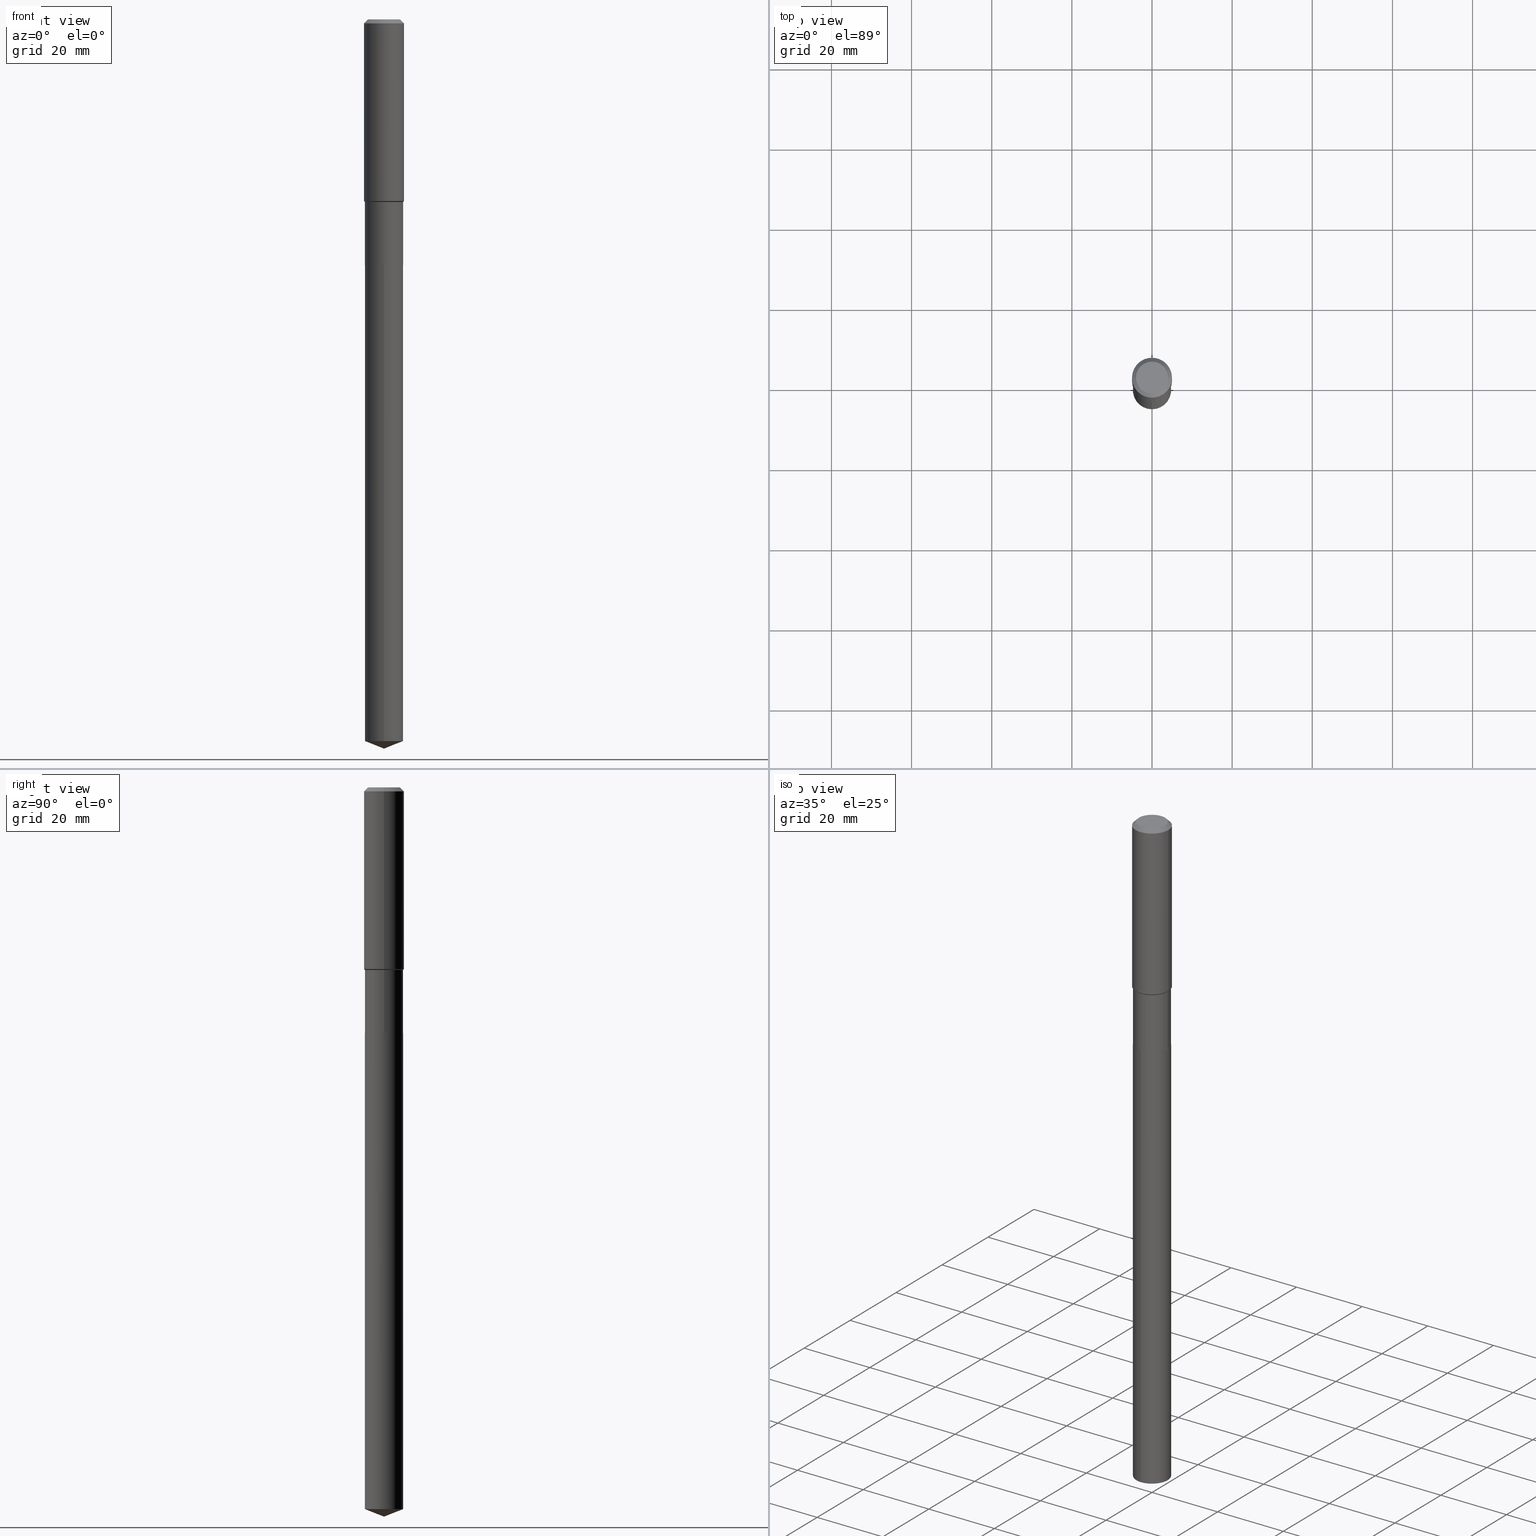
[diagram: canonical four-view strip — front | top / right | iso, engineering-drawing reading convention]
A machine part, canonical four-view strip (front | top / right | iso — engineering-drawing reading convention). The complete STEP part file that produces these views, byte-faithful:
ISO-10303-21;
HEADER;
FILE_DESCRIPTION (( 'STEP AP203' ),
    '1' );
FILE_NAME ('56529.STEP',
    '2024-04-24T18:19:36',
    ( '' ),
    ( '' ),
    'SwSTEP 2.0',
    'SolidWorks 2023',
    '' );
FILE_SCHEMA (( 'CONFIG_CONTROL_DESIGN' ));
ENDSEC;

DATA;
#1 = DIRECTION ( 'NONE',  ( -2.445468806185136597E-29, 3.491481338843145583E-15, 1.000000000000000000 ) ) ;
#2 = AXIS2_PLACEMENT_3D ( 'NONE', #35, #78, #224 ) ;
#3 = FACE_OUTER_BOUND ( 'NONE', #220, .T. ) ;
#4 = AXIS2_PLACEMENT_3D ( 'NONE', #473, #96, #235 ) ;
#5 = DIRECTION ( 'NONE',  ( -2.445468806185136597E-29, 3.491481338843145583E-15, 1.000000000000000000 ) ) ;
#6 = DIRECTION ( 'NONE',  ( -6.982962677686265922E-15, -1.000000000000000000, 2.913971193241880372E-15 ) ) ;
#7 = FACE_OUTER_BOUND ( 'NONE', #351, .T. ) ;
#8 = LINE ( 'NONE', #116, #114 ) ;
#9 = EDGE_CURVE ( 'NONE', #318, #447, #44, .T. ) ;
#10 = APPLICATION_PROTOCOL_DEFINITION ( 'international standard', 'config_control_design', 1994, #239 ) ;
#11 = LOCAL_TIME ( 14, 19, 36.00000000000000000, #93 ) ;
#12 = DIRECTION ( 'NONE',  ( -2.445468806185136597E-29, 3.491481338843145583E-15, 1.000000000000000000 ) ) ;
#13 = EDGE_CURVE ( 'NONE', #127, #438, #23, .T. ) ;
#14 = MANIFOLD_SOLID_BREP ( 'Body-Move/Copy2[2]', #223 ) ;
#15 = DIRECTION ( 'NONE',  ( -2.445468806185136597E-29, 3.491481338843145583E-15, 1.000000000000000000 ) ) ;
#16 = UNCERTAINTY_MEASURE_WITH_UNIT (LENGTH_MEASURE( 1.000000000000000082E-05 ), #287, 'distance_accuracy_value', 'NONE');
#17 = CARTESIAN_POINT ( 'NONE',  ( 1.752193495666872718E-28, -2.501624887807303408E-14, -7.165000000000000036 ) ) ;
#18 = ORGANIZATION ( 'UNSPECIFIED', 'UNSPECIFIED', '' ) ;
#19 = ORIENTED_EDGE ( 'NONE', *, *, #9, .T. ) ;
#20 = DIRECTION ( 'NONE',  ( -2.445489751636567891E-29, 3.491451343764555193E-15, 1.000000000000000000 ) ) ;
#21 = PERSON_AND_ORGANIZATION ( #261, #18 ) ;
#22 = EDGE_CURVE ( 'NONE', #422, #399, #336, .T. ) ;
#23 = CIRCLE ( 'NONE', #54, 0.1968500000000002192 ) ;
#24 = VERTEX_POINT ( 'NONE', #182 ) ;
#25 = DESIGN_CONTEXT ( 'detailed design', #239, 'design' ) ;
#26 = CONICAL_SURFACE ( 'NONE', #86, 0.1869999999999999996, 0.7853981633975507526 ) ;
#27 = PERSON_AND_ORGANIZATION ( #261, #18 ) ;
#28 = ORIENTED_EDGE ( 'NONE', *, *, #269, .T. ) ;
#29 = EDGE_CURVE ( 'NONE', #236, #406, #402, .T. ) ;
#30 = ORIENTED_EDGE ( 'NONE', *, *, #407, .T. ) ;
#31 = ORIENTED_EDGE ( 'NONE', *, *, #80, .F. ) ;
#32 = ORIENTED_EDGE ( 'NONE', *, *, #105, .T. ) ;
#33 = CONICAL_SURFACE ( 'NONE', #487, 0.1874999999999999445, 0.7853981633974482790 ) ;
#34 = VECTOR ( 'NONE', #180, 39.37007874015748143 ) ;
#35 = CARTESIAN_POINT ( 'NONE',  ( 5.898470760518548790E-29, -8.421452989289666115E-15, -2.411999999999999478 ) ) ;
#36 = CARTESIAN_POINT ( 'NONE',  ( -4.713871149261283817E-47, 6.730158695841841775E-33, 1.927594061857935365E-18 ) ) ;
#37 =( NAMED_UNIT ( * ) SI_UNIT ( $, .STERADIAN. ) SOLID_ANGLE_UNIT ( ) );
#38 = CIRCLE ( 'NONE', #280, 0.1574800000000000089 ) ;
#39 = EDGE_LOOP ( 'NONE', ( #283, #30, #357, #332 ) ) ;
#40 = CARTESIAN_POINT ( 'NONE',  ( 0.000000000000000000, 0.000000000000000000, 0.000000000000000000 ) ) ;
#41 = APPROVAL_PERSON_ORGANIZATION ( #156, #374, #102 ) ;
#42 = FACE_OUTER_BOUND ( 'NONE', #360, .T. ) ;
#43 = EDGE_CURVE ( 'NONE', #368, #24, #467, .T. ) ;
#44 = CIRCLE ( 'NONE', #227, 0.1574800000000000089 ) ;
#45 = VECTOR ( 'NONE', #421, 39.37007874015748854 ) ;
#46 = EDGE_CURVE ( 'NONE', #318, #210, #184, .T. ) ;
#47 = EDGE_CURVE ( 'NONE', #406, #399, #453, .T. ) ;
#48 = CC_DESIGN_PERSON_AND_ORGANIZATION_ASSIGNMENT ( #165, #341, ( #414 ) ) ;
#49 = CARTESIAN_POINT ( 'NONE',  ( -0.1574800000000000089, 1.168406772637159618E-15, 3.855188123707939751E-18 ) ) ;
#50 = FACE_OUTER_BOUND ( 'NONE', #398, .T. ) ;
#51 = LOCAL_TIME ( 14, 19, 36.00000000000000000, #84 ) ;
#52 = FACE_OUTER_BOUND ( 'NONE', #365, .T. ) ;
#53 = CARTESIAN_POINT ( 'NONE',  ( -0.1968500000000000250, 1.237136582792286225E-15, -0.03937000000000026589 ) ) ;
#54 = AXIS2_PLACEMENT_3D ( 'NONE', #113, #370, #256 ) ;
#55 = FACE_OUTER_BOUND ( 'NONE', #178, .T. ) ;
#56 = CARTESIAN_POINT ( 'NONE',  ( -1.309305502066116041E-15, -0.1875000000000084377, -2.412499999999998757 ) ) ;
#57 = SECURITY_CLASSIFICATION_LEVEL ( 'unclassified' ) ;
#58 = ADVANCED_FACE ( 'NONE', ( #449 ), #410, .T. ) ;
#59 = LOCAL_TIME ( 14, 19, 36.00000000000000000, #66 ) ;
#60 = DIRECTION ( 'NONE',  ( 2.445489751636567331E-29, -3.491451343764555193E-15, -1.000000000000000000 ) ) ;
#61 = DIRECTION ( 'NONE',  ( -2.445468806185136597E-29, 3.491481338843145583E-15, 1.000000000000000000 ) ) ;
#62 = AXIS2_PLACEMENT_3D ( 'NONE', #270, #61, #471 ) ;
#63 = CIRCLE ( 'NONE', #317, 0.1968500000000000250 ) ;
#64 = PERSON_AND_ORGANIZATION_ROLE ( 'creator' ) ;
#65 = CARTESIAN_POINT ( 'NONE',  ( 5.899693494921640470E-29, -8.423198729959086830E-15, -2.412499999999999645 ) ) ;
#66 = COORDINATED_UNIVERSAL_TIME_OFFSET ( 5, 0, .BEHIND. ) ;
#67 = ORIENTED_EDGE ( 'NONE', *, *, #219, .F. ) ;
#68 = CARTESIAN_POINT ( 'NONE',  ( -9.427742298522567634E-47, 1.346031739168368355E-32, 3.855188123715870730E-18 ) ) ;
#69 = VECTOR ( 'NONE', #237, 39.37007874015748143 ) ;
#70 = ORIENTED_EDGE ( 'NONE', *, *, #151, .F. ) ;
#71 = ORIENTED_EDGE ( 'NONE', *, *, #43, .T. ) ;
#72 = DIRECTION ( 'NONE',  ( 1.000000000000000000, -6.982962677686265133E-15, 0.000000000000000000 ) ) ;
#73 =( LENGTH_UNIT ( ) NAMED_UNIT ( * ) SI_UNIT ( $, .METRE. ) );
#74 = EDGE_CURVE ( 'NONE', #438, #361, #8, .T. ) ;
#75 = DIRECTION ( 'NONE',  ( -2.445468806185136597E-29, 3.491481338843145583E-15, 1.000000000000000000 ) ) ;
#76 = AXIS2_PLACEMENT_3D ( 'NONE', #290, #179, #376 ) ;
#77 = CIRCLE ( 'NONE', #188, 0.1875000000000000278 ) ;
#78 = DIRECTION ( 'NONE',  ( -2.445468806185136597E-29, 3.491481338843145583E-15, 1.000000000000000000 ) ) ;
#79 = CARTESIAN_POINT ( 'NONE',  ( 5.899693494921640470E-29, -8.423198729959086830E-15, -2.412499999999999645 ) ) ;
#80 = EDGE_CURVE ( 'NONE', #291, #368, #99, .T. ) ;
#81 = APPROVAL_STATUS ( 'not_yet_approved' ) ;
#82 = LINE ( 'NONE', #190, #352 ) ;
#83 = EDGE_CURVE ( 'NONE', #216, #127, #82, .T. ) ;
#84 = COORDINATED_UNIVERSAL_TIME_OFFSET ( 5, 0, .BEHIND. ) ;
#85 = CARTESIAN_POINT ( 'NONE',  ( 0.1875000000000000278, -9.730758491355841123E-15, -2.411999999999999478 ) ) ;
#86 = AXIS2_PLACEMENT_3D ( 'NONE', #198, #272, #264 ) ;
#87 = CARTESIAN_POINT ( 'NONE',  ( 5.898470760518548790E-29, -8.421452989289666115E-15, -2.411999999999999478 ) ) ;
#88 = CARTESIAN_POINT ( 'NONE',  ( 0.000000000000000000, 0.000000000000000000, 0.000000000000000000 ) ) ;
#89 = EDGE_CURVE ( 'NONE', #291, #24, #302, .T. ) ;
#90 = CC_DESIGN_APPROVAL ( #267, ( #350 ) ) ;
#91 = CARTESIAN_POINT ( 'NONE',  ( 0.1968500000000001082, -1.374596203102542397E-15, 9.598753983154305062E-30 ) ) ;
#92 = ADVANCED_FACE ( 'NONE', ( #169 ), #33, .T. ) ;
#93 = COORDINATED_UNIVERSAL_TIME_OFFSET ( 5, 0, .BEHIND. ) ;
#94 = CARTESIAN_POINT ( 'NONE',  ( 4.386437397654279602E-29, -6.262670077482950394E-15, -1.793700000000000072 ) ) ;
#95 = DIRECTION ( 'NONE',  ( 0.7071067811865474617, -2.468850131082256666E-15, 0.7071067811865474617 ) ) ;
#96 = DIRECTION ( 'NONE',  ( -2.445468806185136597E-29, 3.491481338843145583E-15, 1.000000000000000000 ) ) ;
#97 = CYLINDRICAL_SURFACE ( 'NONE', #257, 0.1875000000000000278 ) ;
#98 = DIMENSIONAL_EXPONENTS ( 1.000000000000000000, 0.000000000000000000, 0.000000000000000000, 0.000000000000000000, 0.000000000000000000, 0.000000000000000000, 0.000000000000000000 ) ;
#99 = LINE ( 'NONE', #260, #448 ) ;
#100 = VERTEX_POINT ( 'NONE', #263 ) ;
#101 = EDGE_CURVE ( 'NONE', #24, #368, #207, .T. ) ;
#102 = APPROVAL_ROLE ( '' ) ;
#103 = ADVANCED_BREP_SHAPE_REPRESENTATION ( '56529', ( #322, #14, #221 ), #378 ) ;
#104 = EDGE_CURVE ( 'NONE', #438, #127, #301, .T. ) ;
#105 = EDGE_CURVE ( 'NONE', #127, #210, #238, .T. ) ;
#106 = ORIENTED_EDGE ( 'NONE', *, *, #430, .F. ) ;
#107 = CARTESIAN_POINT ( 'NONE',  ( 1.734126403372843801E-28, -2.475844888006100579E-14, -7.091141785822198784 ) ) ;
#108 = AXIS2_PLACEMENT_3D ( 'NONE', #344, #401, #405 ) ;
#109 = AXIS2_PLACEMENT_3D ( 'NONE', #167, #203, #396 ) ;
#110 = EDGE_LOOP ( 'NONE', ( #372, #19 ) ) ;
#111 = DIRECTION ( 'NONE',  ( -2.445468806185136597E-29, 3.491481338843145583E-15, 1.000000000000000000 ) ) ;
#112 = ORIENTED_EDGE ( 'NONE', *, *, #74, .T. ) ;
#113 = CARTESIAN_POINT ( 'NONE',  ( 4.363572264316447914E-29, -6.230024726964765516E-15, -1.784349999999999881 ) ) ;
#114 = VECTOR ( 'NONE', #199, 39.37007874015748143 ) ;
#115 = AXIS2_PLACEMENT_3D ( 'NONE', #334, #330, #340 ) ;
#116 = CARTESIAN_POINT ( 'NONE',  ( -0.1968500000000001082, 1.398703375343757985E-15, -9.682923725166787881E-30 ) ) ;
#117 = LINE ( 'NONE', #456, #45 ) ;
#118 = DATE_AND_TIME ( #159, #51 ) ;
#119 = CARTESIAN_POINT ( 'NONE',  ( -7.875724054060540841E-28, 1.124423930802390595E-13, 32.20507874015748229 ) ) ;
#120 = VECTOR ( 'NONE', #274, 39.37007874015748143 ) ;
#121 = VECTOR ( 'NONE', #293, 39.37007874015748143 ) ;
#122 = ORIENTED_EDGE ( 'NONE', *, *, #29, .T. ) ;
#123 = DIRECTION ( 'NONE',  ( -6.982962677686265922E-15, -1.000000000000000000, 5.827942386483760744E-15 ) ) ;
#124 = FACE_OUTER_BOUND ( 'NONE', #211, .T. ) ;
#125 = DATE_AND_TIME ( #464, #446 ) ;
#126 = VECTOR ( 'NONE', #343, 39.37007874015748143 ) ;
#127 = VERTEX_POINT ( 'NONE', #347 ) ;
#128 = PERSON_AND_ORGANIZATION_ROLE ( 'classification_officer' ) ;
#129 = EDGE_CURVE ( 'NONE', #422, #100, #465, .T. ) ;
#130 = EDGE_CURVE ( 'NONE', #447, #318, #38, .T. ) ;
#131 = MECHANICAL_CONTEXT ( 'NONE', #359, 'mechanical' ) ;
#132 = ADVANCED_FACE ( 'NONE', ( #42 ), #335, .T. ) ;
#133 = ORIENTED_EDGE ( 'NONE', *, *, #22, .T. ) ;
#134 = DATE_AND_TIME ( #306, #11 ) ;
#135 = EDGE_CURVE ( 'NONE', #478, #279, #367, .T. ) ;
#136 = ORIENTED_EDGE ( 'NONE', *, *, #299, .T. ) ;
#137 = ORIENTED_EDGE ( 'NONE', *, *, #232, .F. ) ;
#138 = ORIENTED_EDGE ( 'NONE', *, *, #13, .T. ) ;
#139 = DATE_AND_TIME ( #206, #59 ) ;
#140 = DIRECTION ( 'NONE',  ( -2.445489751636567891E-29, 3.491451343764555193E-15, 1.000000000000000000 ) ) ;
#141 = ADVANCED_FACE ( 'NONE', ( #295 ), #385, .T. ) ;
#142 = EDGE_LOOP ( 'NONE', ( #71, #28, #409, #482 ) ) ;
#143 = AXIS2_PLACEMENT_3D ( 'NONE', #307, #5, #380 ) ;
#144 = CIRCLE ( 'NONE', #420, 0.1869999999999999996 ) ;
#145 = EDGE_CURVE ( 'NONE', #100, #438, #117, .T. ) ;
#146 = EDGE_LOOP ( 'NONE', ( #166, #444, #32, #67 ) ) ;
#147 = EDGE_CURVE ( 'NONE', #399, #422, #273, .T. ) ;
#148 = ORIENTED_EDGE ( 'NONE', *, *, #407, .F. ) ;
#149 = CARTESIAN_POINT ( 'NONE',  ( 0.1874999999999999722, -1.309305502066174811E-15, 9.142831454617378210E-30 ) ) ;
#150 = EDGE_CURVE ( 'NONE', #368, #279, #300, .T. ) ;
#151 = EDGE_CURVE ( 'NONE', #216, #100, #469, .T. ) ;
#152 = CARTESIAN_POINT ( 'NONE',  ( 5.899693494921640470E-29, -8.423198729959086830E-15, -2.412499999999999645 ) ) ;
#153 = CARTESIAN_POINT ( 'NONE',  ( 1.752193407047600698E-28, -2.501624887807303408E-14, -7.165000000000000036 ) ) ;
#154 = CARTESIAN_POINT ( 'NONE',  ( 4.386437397654279602E-29, -6.262670077482950394E-15, -1.793700000000000072 ) ) ;
#155 = FACE_OUTER_BOUND ( 'NONE', #472, .T. ) ;
#156 = PERSON_AND_ORGANIZATION ( #261, #18 ) ;
#157 = ORIENTED_EDGE ( 'NONE', *, *, #145, .T. ) ;
#158 = DIRECTION ( 'NONE',  ( 1.000000000000000000, -6.982962677686266711E-15, 0.000000000000000000 ) ) ;
#159 = CALENDAR_DATE ( 2024, 24, 4 ) ;
#160 = VECTOR ( 'NONE', #339, 39.37007874015747433 ) ;
#161 = DIRECTION ( 'NONE',  ( -2.445489751636567891E-29, 3.491451343764555193E-15, 1.000000000000000000 ) ) ;
#162 = APPROVAL ( #81, 'UNSPECIFIED' ) ;
#163 = AXIS2_PLACEMENT_3D ( 'NONE', #79, #337, #191 ) ;
#164 = CARTESIAN_POINT ( 'NONE',  ( 0.1869999999999999996, -9.729012750686418831E-15, -2.412499999999999645 ) ) ;
#165 = PERSON_AND_ORGANIZATION ( #261, #18 ) ;
#166 = ORIENTED_EDGE ( 'NONE', *, *, #74, .F. ) ;
#167 = CARTESIAN_POINT ( 'NONE',  ( 9.627810689950948900E-31, -1.374596203102555561E-16, -0.03937000000000026589 ) ) ;
#168 = DIRECTION ( 'NONE',  ( -2.445468806185136597E-29, 3.491481338843145583E-15, 1.000000000000000000 ) ) ;
#169 = FACE_OUTER_BOUND ( 'NONE', #39, .T. ) ;
#170 = CYLINDRICAL_SURFACE ( 'NONE', #428, 0.1968500000000001082 ) ;
#171 = VECTOR ( 'NONE', #369, 39.37007874015748143 ) ;
#172 = CYLINDRICAL_SURFACE ( 'NONE', #4, 0.1968500000000001082 ) ;
#173 = ORIENTED_EDGE ( 'NONE', *, *, #89, .T. ) ;
#174 = LINE ( 'NONE', #476, #171 ) ;
#175 = DIRECTION ( 'NONE',  ( -2.445489751636567891E-29, 3.491451343764555193E-15, 1.000000000000000000 ) ) ;
#176 = ADVANCED_FACE ( 'NONE', ( #201 ), #97, .T. ) ;
#177 = ORIENTED_EDGE ( 'NONE', *, *, #29, .F. ) ;
#178 = EDGE_LOOP ( 'NONE', ( #404, #392, #255, #342 ) ) ;
#179 = DIRECTION ( 'NONE',  ( -2.445468806185136597E-29, 3.491481338843145583E-15, 1.000000000000000000 ) ) ;
#180 = DIRECTION ( 'NONE',  ( -0.7071067811866199593, 7.493145998870616062E-15, 0.7071067811864750752 ) ) ;
#181 = EDGE_LOOP ( 'NONE', ( #320, #240 ) ) ;
#182 = CARTESIAN_POINT ( 'NONE',  ( 1.332267629550361595E-15, 0.1874999999999753253, -7.091141785822199672 ) ) ;
#183 = EDGE_CURVE ( 'NONE', #236, #422, #468, .T. ) ;
#184 = LINE ( 'NONE', #324, #316 ) ;
#185 = PRODUCT_RELATED_PRODUCT_CATEGORY ( 'detail', '', ( #414 ) ) ;
#186 = ADVANCED_FACE ( 'NONE', ( #484 ), #470, .F. ) ;
#187 = CARTESIAN_POINT ( 'NONE',  ( -0.1874999999999999722, 1.332267629550187651E-15, -9.223003294227946589E-30 ) ) ;
#188 = AXIS2_PLACEMENT_3D ( 'NONE', #65, #175, #312 ) ;
#189 = DIRECTION ( 'NONE',  ( -6.982962677686268288E-15, -1.000000000000000000, 3.498627837350006589E-15 ) ) ;
#190 = CARTESIAN_POINT ( 'NONE',  ( 0.1874999999999999445, -7.571975579549125402E-15, -1.793700000000000072 ) ) ;
#191 = DIRECTION ( 'NONE',  ( 1.000000000000000000, -6.982962677686265922E-15, 4.876176775795935793E-29 ) ) ;
#192 = SHAPE_DEFINITION_REPRESENTATION ( #254, #103 ) ;
#193 = DIRECTION ( 'NONE',  ( 1.000000000000000000, -6.982962677686266711E-15, 4.876176775795935793E-29 ) ) ;
#194 = DIRECTION ( 'NONE',  ( -6.982962677686265922E-15, -1.000000000000000000, 2.913971193241880372E-15 ) ) ;
#195 = PRODUCT_DEFINITION ( 'UNKNOWN', '', #350, #25 ) ;
#196 = APPROVAL_DATE_TIME ( #125, #267 ) ;
#197 = AXIS2_PLACEMENT_3D ( 'NONE', #442, #111, #72 ) ;
#198 = CARTESIAN_POINT ( 'NONE',  ( 5.899693494921640470E-29, -8.423198729959086830E-15, -2.412499999999999645 ) ) ;
#199 = DIRECTION ( 'NONE',  ( -2.445468806185136877E-29, 3.491481338843145188E-15, 1.000000000000000000 ) ) ;
#200 = EDGE_CURVE ( 'NONE', #279, #478, #77, .T. ) ;
#201 = FACE_OUTER_BOUND ( 'NONE', #142, .T. ) ;
#202 = DIRECTION ( 'NONE',  ( -2.445489751636567891E-29, 3.491451343764555193E-15, 1.000000000000000000 ) ) ;
#203 = DIRECTION ( 'NONE',  ( 2.445468806185136597E-29, -3.491481338843145583E-15, -1.000000000000000000 ) ) ;
#204 = CARTESIAN_POINT ( 'NONE',  ( 5.899693494921640470E-29, -8.423198729959086830E-15, -2.412499999999999645 ) ) ;
#205 = CARTESIAN_POINT ( 'NONE',  ( -9.427742298522567634E-47, 1.346031739168368355E-32, 3.855188123715870730E-18 ) ) ;
#206 = CALENDAR_DATE ( 2024, 24, 4 ) ;
#207 = CIRCLE ( 'NONE', #265, 0.1875000000000000278 ) ;
#208 = AXIS2_PLACEMENT_3D ( 'NONE', #275, #168, #349 ) ;
#209 = ORIENTED_EDGE ( 'NONE', *, *, #46, .F. ) ;
#210 = VERTEX_POINT ( 'NONE', #362 ) ;
#211 = EDGE_LOOP ( 'NONE', ( #304, #474, #136, #388 ) ) ;
#212 = ORIENTED_EDGE ( 'NONE', *, *, #13, .F. ) ;
#213 = DIRECTION ( 'NONE',  ( 2.445468806185136597E-29, -3.491481338843145583E-15, -1.000000000000000000 ) ) ;
#214 = AXIS2_PLACEMENT_3D ( 'NONE', #36, #333, #248 ) ;
#215 = ORIENTED_EDGE ( 'NONE', *, *, #219, .T. ) ;
#216 = VERTEX_POINT ( 'NONE', #315 ) ;
#217 = DIRECTION ( 'NONE',  ( -2.445468806185136597E-29, 3.491481338843145583E-15, 1.000000000000000000 ) ) ;
#218 = CARTESIAN_POINT ( 'NONE',  ( -1.309305502066116041E-15, -0.1875000000000084377, -2.412499999999998757 ) ) ;
#219 = EDGE_CURVE ( 'NONE', #361, #210, #63, .T. ) ;
#220 = EDGE_LOOP ( 'NONE', ( #356, #247, #323 ) ) ;
#221 = AXIS2_PLACEMENT_3D ( 'NONE', #40, #393, #383 ) ;
#222 = ORIENTED_EDGE ( 'NONE', *, *, #269, .F. ) ;
#223 = CLOSED_SHELL ( 'NONE', ( #382, #262, #329, #58, #459, #141, #92, #348, #259, #230, #432, #285 ) ) ;
#224 = DIRECTION ( 'NONE',  ( 1.000000000000000000, -6.982962677686266711E-15, 0.000000000000000000 ) ) ;
#225 = DIRECTION ( 'NONE',  ( -2.445468806185136877E-29, 3.491481338843145188E-15, 1.000000000000000000 ) ) ;
#226 = DATE_TIME_ROLE ( 'classification_date' ) ;
#227 = AXIS2_PLACEMENT_3D ( 'NONE', #68, #217, #435 ) ;
#228 = CIRCLE ( 'NONE', #353, 0.1874999999999999445 ) ;
#229 = APPROVAL_DATE_TIME ( #118, #162 ) ;
#230 = ADVANCED_FACE ( 'NONE', ( #375 ), #252, .F. ) ;
#231 = DIRECTION ( 'NONE',  ( -2.445468806185136597E-29, 3.491481338843145583E-15, 1.000000000000000000 ) ) ;
#232 = EDGE_CURVE ( 'NONE', #399, #216, #490, .T. ) ;
#233 = DIRECTION ( 'NONE',  ( 0.7071067811866199593, -2.468850131083015945E-15, 0.7071067811864750752 ) ) ;
#234 = ORIENTED_EDGE ( 'NONE', *, *, #43, .F. ) ;
#235 = DIRECTION ( 'NONE',  ( 1.000000000000000000, -6.982962677686266711E-15, 4.876176775795935793E-29 ) ) ;
#236 = VERTEX_POINT ( 'NONE', #415 ) ;
#237 = DIRECTION ( 'NONE',  ( -2.445489751636567891E-29, 3.491451343764555193E-15, 1.000000000000000000 ) ) ;
#238 = LINE ( 'NONE', #91, #325 ) ;
#239 = APPLICATION_CONTEXT ( 'configuration controlled 3d designs of mechanical parts and assemblies' ) ;
#240 = ORIENTED_EDGE ( 'NONE', *, *, #135, .T. ) ;
#241 = DIRECTION ( 'NONE',  ( -1.000000000000000000, 6.982962677686265922E-15, 0.000000000000000000 ) ) ;
#242 = AXIS2_PLACEMENT_3D ( 'NONE', #107, #140, #439 ) ;
#243 = CALENDAR_DATE ( 2024, 24, 4 ) ;
#244 = CC_DESIGN_PERSON_AND_ORGANIZATION_ASSIGNMENT ( #389, #64, ( #350 ) ) ;
#245 = ORIENTED_EDGE ( 'NONE', *, *, #22, .F. ) ;
#246 = CC_DESIGN_APPROVAL ( #162, ( #277 ) ) ;
#247 = ORIENTED_EDGE ( 'NONE', *, *, #80, .T. ) ;
#248 = DIRECTION ( 'NONE',  ( -1.000000000000000000, 6.982962677686265922E-15, -4.876176775795935793E-29 ) ) ;
#249 = AXIS2_PLACEMENT_3D ( 'NONE', #152, #418, #6 ) ;
#250 = EDGE_LOOP ( 'NONE', ( #308, #122, #477, #245 ) ) ;
#251 = ORIENTED_EDGE ( 'NONE', *, *, #135, .F. ) ;
#252 = PLANE ( 'NONE',  #214 ) ;
#253 = EDGE_LOOP ( 'NONE', ( #488, #157, #212, #373 ) ) ;
#254 = PRODUCT_DEFINITION_SHAPE ( 'NONE', 'NONE',  #195 ) ;
#255 = ORIENTED_EDGE ( 'NONE', *, *, #147, .F. ) ;
#256 = DIRECTION ( 'NONE',  ( 1.000000000000000000, -6.982962677686265922E-15, 0.000000000000000000 ) ) ;
#257 = AXIS2_PLACEMENT_3D ( 'NONE', #431, #20, #305 ) ;
#258 = PERSON_AND_ORGANIZATION ( #261, #18 ) ;
#259 = ADVANCED_FACE ( 'NONE', ( #50 ), #338, .T. ) ;
#260 = CARTESIAN_POINT ( 'NONE',  ( 1.752183300867285036E-28, -2.501639360432723296E-14, -7.165000000000000036 ) ) ;
#261 = PERSON ( 'UNSPECIFIED', 'UNSPECIFIED', 'UNSPECIFIED', ('UNSPECIFIED'), ('UNSPECIFIED'), ('UNSPECIFIED') ) ;
#262 = ADVANCED_FACE ( 'NONE', ( #124 ), #386, .T. ) ;
#263 = CARTESIAN_POINT ( 'NONE',  ( -0.1874999999999999445, -6.009793903836120406E-15, -1.793700000000000072 ) ) ;
#264 = DIRECTION ( 'NONE',  ( 1.000000000000000000, -6.982962677686265133E-15, 0.000000000000000000 ) ) ;
#265 = AXIS2_PLACEMENT_3D ( 'NONE', #461, #202, #123 ) ;
#266 = AXIS2_PLACEMENT_3D ( 'NONE', #87, #12, #158 ) ;
#267 = APPROVAL ( #309, 'UNSPECIFIED' ) ;
#268 = CYLINDRICAL_SURFACE ( 'NONE', #286, 0.1874999999999999722 ) ;
#269 = EDGE_CURVE ( 'NONE', #24, #478, #174, .T. ) ;
#270 = CARTESIAN_POINT ( 'NONE',  ( 4.363572264316447914E-29, -6.230024726964765516E-15, -1.784349999999999881 ) ) ;
#271 = ORIENTED_EDGE ( 'NONE', *, *, #101, .T. ) ;
#272 = DIRECTION ( 'NONE',  ( -2.445468806185136597E-29, 3.491481338843145583E-15, 1.000000000000000000 ) ) ;
#273 = CIRCLE ( 'NONE', #266, 0.1875000000000000278 ) ;
#274 = DIRECTION ( 'NONE',  ( -2.445468806185136877E-29, 3.491481338843145188E-15, 1.000000000000000000 ) ) ;
#275 = CARTESIAN_POINT ( 'NONE',  ( 4.386437397654279602E-29, -6.262670077482950394E-15, -1.793700000000000072 ) ) ;
#276 = ORIENTED_EDGE ( 'NONE', *, *, #232, .T. ) ;
#277 = SECURITY_CLASSIFICATION ( '', '', #57 ) ;
#278 = APPROVAL_PERSON_ORGANIZATION ( #258, #162, #455 ) ;
#279 = VERTEX_POINT ( 'NONE', #218 ) ;
#280 = AXIS2_PLACEMENT_3D ( 'NONE', #205, #1, #379 ) ;
#281 = ORIENTED_EDGE ( 'NONE', *, *, #299, .F. ) ;
#282 = CARTESIAN_POINT ( 'NONE',  ( 5.899693494921640470E-29, -8.423198729959086830E-15, -2.412499999999999645 ) ) ;
#283 = ORIENTED_EDGE ( 'NONE', *, *, #145, .F. ) ;
#284 = APPROVAL_DATE_TIME ( #139, #374 ) ;
#285 = ADVANCED_FACE ( 'NONE', ( #371 ), #411, .T. ) ;
#286 = AXIS2_PLACEMENT_3D ( 'NONE', #88, #231, #193 ) ;
#287 =( CONVERSION_BASED_UNIT ( 'INCH', #483 ) LENGTH_UNIT ( ) NAMED_UNIT ( #98 ) );
#288 = ORIENTED_EDGE ( 'NONE', *, *, #363, .T. ) ;
#289 = AXIS2_PLACEMENT_3D ( 'NONE', #119, #452, #189 ) ;
#290 = CARTESIAN_POINT ( 'NONE',  ( 5.899693494921640470E-29, -8.423198729959086830E-15, -2.412499999999999645 ) ) ;
#291 = VERTEX_POINT ( 'NONE', #153 ) ;
#292 = DIRECTION ( 'NONE',  ( -2.445468806185136597E-29, 3.491481338843145583E-15, 1.000000000000000000 ) ) ;
#293 = DIRECTION ( 'NONE',  ( -2.445468806185136877E-29, 3.491481338843145188E-15, 1.000000000000000000 ) ) ;
#294 = CONICAL_SURFACE ( 'NONE', #289, 99.94676754583990430, 1.195550537616119291 ) ;
#295 = FACE_OUTER_BOUND ( 'NONE', #314, .T. ) ;
#296 = DIRECTION ( 'NONE',  ( 1.000000000000000000, -6.982962677686264344E-15, 0.000000000000000000 ) ) ;
#297 = LOCAL_TIME ( 14, 19, 36.00000000000000000, #480 ) ;
#298 = DIRECTION ( 'NONE',  ( -2.445468806185136597E-29, 3.491481338843145583E-15, 1.000000000000000000 ) ) ;
#299 = EDGE_CURVE ( 'NONE', #210, #361, #441, .T. ) ;
#300 = LINE ( 'NONE', #56, #69 ) ;
#301 = CIRCLE ( 'NONE', #62, 0.1968500000000002192 ) ;
#302 = LINE ( 'NONE', #17, #160 ) ;
#303 = CARTESIAN_POINT ( 'NONE',  ( 0.000000000000000000, 0.000000000000000000, 0.000000000000000000 ) ) ;
#304 = ORIENTED_EDGE ( 'NONE', *, *, #9, .F. ) ;
#305 = DIRECTION ( 'NONE',  ( -6.982962677686265922E-15, -1.000000000000000000, 2.913971193241880372E-15 ) ) ;
#306 = CALENDAR_DATE ( 2024, 24, 4 ) ;
#307 = CARTESIAN_POINT ( 'NONE',  ( 4.386437397654279602E-29, -6.262670077482950394E-15, -1.793700000000000072 ) ) ;
#308 = ORIENTED_EDGE ( 'NONE', *, *, #183, .F. ) ;
#309 = APPROVAL_STATUS ( 'not_yet_approved' ) ;
#310 = DIRECTION ( 'NONE',  ( 6.982962677686265922E-15, 1.000000000000000000, -3.491451343764555193E-15 ) ) ;
#311 = APPROVAL_ROLE ( '' ) ;
#312 = DIRECTION ( 'NONE',  ( -6.982962677686265922E-15, -1.000000000000000000, 2.913971193241880372E-15 ) ) ;
#313 = CC_DESIGN_DATE_AND_TIME_ASSIGNMENT ( #134, #226, ( #277 ) ) ;
#314 = EDGE_LOOP ( 'NONE', ( #427, #133, #276, #148 ) ) ;
#315 = CARTESIAN_POINT ( 'NONE',  ( 0.1874999999999999445, -7.571975579549125402E-15, -1.793700000000000072 ) ) ;
#316 = VECTOR ( 'NONE', #485, 39.37007874015748143 ) ;
#317 = AXIS2_PLACEMENT_3D ( 'NONE', #377, #292, #445 ) ;
#318 = VERTEX_POINT ( 'NONE', #416 ) ;
#319 = ADVANCED_FACE ( 'NONE', ( #3 ), #294, .T. ) ;
#320 = ORIENTED_EDGE ( 'NONE', *, *, #200, .T. ) ;
#321 = CC_DESIGN_APPROVAL ( #374, ( #195 ) ) ;
#322 = MANIFOLD_SOLID_BREP ( 'Body-Move/Copy2[1]', #366 ) ;
#323 = ORIENTED_EDGE ( 'NONE', *, *, #101, .F. ) ;
#324 = CARTESIAN_POINT ( 'NONE',  ( 0.1968500000000000250, -1.487948651171581601E-15, -0.03937000000000026589 ) ) ;
#325 = VECTOR ( 'NONE', #225, 39.37007874015748143 ) ;
#326 = AXIS2_PLACEMENT_3D ( 'NONE', #282, #60, #310 ) ;
#327 = CARTESIAN_POINT ( 'NONE',  ( -0.1875000000000000278, -6.009793903836120406E-15, -2.411999999999999478 ) ) ;
#328 = ORIENTED_EDGE ( 'NONE', *, *, #129, .T. ) ;
#329 = ADVANCED_FACE ( 'NONE', ( #7 ), #170, .T. ) ;
#330 = DIRECTION ( 'NONE',  ( -2.445468806185136597E-29, 3.491481338843145583E-15, 1.000000000000000000 ) ) ;
#331 = CC_DESIGN_SECURITY_CLASSIFICATION ( #277, ( #350 ) ) ;
#332 = ORIENTED_EDGE ( 'NONE', *, *, #104, .F. ) ;
#333 = DIRECTION ( 'NONE',  ( 2.438088387897960049E-29, -3.491481338843145188E-15, -1.000000000000000000 ) ) ;
#334 = CARTESIAN_POINT ( 'NONE',  ( 9.627810689950948900E-31, -1.374596203102555561E-16, -0.03937000000000026589 ) ) ;
#335 = CYLINDRICAL_SURFACE ( 'NONE', #249, 0.1875000000000000278 ) ;
#336 = CIRCLE ( 'NONE', #2, 0.1875000000000000278 ) ;
#337 = DIRECTION ( 'NONE',  ( -2.438088387897960049E-29, 3.491481338843145188E-15, 1.000000000000000000 ) ) ;
#338 = CONICAL_SURFACE ( 'NONE', #346, 0.1968500000000000250, 0.7853981633974450594 ) ;
#339 = DIRECTION ( 'NONE',  ( 6.611014441532068167E-15, 0.9304175679820272382, 0.3665012267242907518 ) ) ;
#340 = DIRECTION ( 'NONE',  ( 1.000000000000000000, -6.982962677686265922E-15, 0.000000000000000000 ) ) ;
#341 = PERSON_AND_ORGANIZATION_ROLE ( 'design_owner' ) ;
#342 = ORIENTED_EDGE ( 'NONE', *, *, #47, .F. ) ;
#343 = DIRECTION ( 'NONE',  ( -0.7071067811865452413, 2.468850131082233000E-15, -0.7071067811865497932 ) ) ;
#344 = CARTESIAN_POINT ( 'NONE',  ( -7.875724054060540841E-28, 1.124423930802390595E-13, 32.20507874015748229 ) ) ;
#345 = VECTOR ( 'NONE', #233, 39.37007874015748143 ) ;
#346 = AXIS2_PLACEMENT_3D ( 'NONE', #358, #213, #241 ) ;
#347 = CARTESIAN_POINT ( 'NONE',  ( 0.1968500000000002192, -7.604620930067308702E-15, -1.784349999999999881 ) ) ;
#348 = ADVANCED_FACE ( 'NONE', ( #354 ), #172, .T. ) ;
#349 = DIRECTION ( 'NONE',  ( 1.000000000000000000, -6.982962677686264344E-15, 0.000000000000000000 ) ) ;
#350 = PRODUCT_DEFINITION_FORMATION_WITH_SPECIFIED_SOURCE ( 'ANY', '', #414, .NOT_KNOWN. ) ;
#351 = EDGE_LOOP ( 'NONE', ( #138, #112, #281, #400 ) ) ;
#352 = VECTOR ( 'NONE', #95, 39.37007874015748854 ) ;
#353 = AXIS2_PLACEMENT_3D ( 'NONE', #94, #75, #397 ) ;
#354 = FACE_OUTER_BOUND ( 'NONE', #146, .T. ) ;
#355 = CC_DESIGN_PERSON_AND_ORGANIZATION_ASSIGNMENT ( #460, #423, ( #350 ) ) ;
#356 = ORIENTED_EDGE ( 'NONE', *, *, #89, .F. ) ;
#357 = ORIENTED_EDGE ( 'NONE', *, *, #83, .T. ) ;
#358 = CARTESIAN_POINT ( 'NONE',  ( 9.627810689950948900E-31, -1.374596203102555561E-16, -0.03937000000000026589 ) ) ;
#359 = APPLICATION_CONTEXT ( 'configuration controlled 3d designs of mechanical parts and assemblies' ) ;
#360 = EDGE_LOOP ( 'NONE', ( #222, #271, #434, #251 ) ) ;
#361 = VERTEX_POINT ( 'NONE', #391 ) ;
#362 = CARTESIAN_POINT ( 'NONE',  ( 0.1968500000000000250, -1.512055823412797189E-15, -0.03937000000000026589 ) ) ;
#363 = EDGE_CURVE ( 'NONE', #447, #361, #425, .T. ) ;
#364 = ORIENTED_EDGE ( 'NONE', *, *, #147, .T. ) ;
#365 = EDGE_LOOP ( 'NONE', ( #31, #173, #234 ) ) ;
#366 = CLOSED_SHELL ( 'NONE', ( #176, #486, #319, #132, #186 ) ) ;
#367 = CIRCLE ( 'NONE', #381, 0.1875000000000000278 ) ;
#368 = VERTEX_POINT ( 'NONE', #387 ) ;
#369 = DIRECTION ( 'NONE',  ( -2.445489751636567891E-29, 3.491451343764555193E-15, 1.000000000000000000 ) ) ;
#370 = DIRECTION ( 'NONE',  ( -2.445468806185136597E-29, 3.491481338843145583E-15, 1.000000000000000000 ) ) ;
#371 = FACE_OUTER_BOUND ( 'NONE', #250, .T. ) ;
#372 = ORIENTED_EDGE ( 'NONE', *, *, #130, .T. ) ;
#373 = ORIENTED_EDGE ( 'NONE', *, *, #83, .F. ) ;
#374 = APPROVAL ( #481, 'UNSPECIFIED' ) ;
#375 = FACE_OUTER_BOUND ( 'NONE', #110, .T. ) ;
#376 = DIRECTION ( 'NONE',  ( 1.000000000000000000, -6.982962677686265133E-15, 0.000000000000000000 ) ) ;
#377 = CARTESIAN_POINT ( 'NONE',  ( 9.627810689950948900E-31, -1.374596203102555561E-16, -0.03937000000000026589 ) ) ;
#378 =( GEOMETRIC_REPRESENTATION_CONTEXT ( 3 ) GLOBAL_UNCERTAINTY_ASSIGNED_CONTEXT ( ( #16 ) ) GLOBAL_UNIT_ASSIGNED_CONTEXT ( ( #287, #437, #37 ) ) REPRESENTATION_CONTEXT ( 'NONE', 'WORKASPACE' ) );
#379 = DIRECTION ( 'NONE',  ( 1.000000000000000000, -6.982962677686265922E-15, 4.876223630392693006E-29 ) ) ;
#380 = DIRECTION ( 'NONE',  ( 1.000000000000000000, -6.982962677686264344E-15, 0.000000000000000000 ) ) ;
#381 = AXIS2_PLACEMENT_3D ( 'NONE', #458, #161, #194 ) ;
#382 = ADVANCED_FACE ( 'NONE', ( #55 ), #26, .T. ) ;
#383 = DIRECTION ( 'NONE',  ( 1.000000000000000000, 0.000000000000000000, 0.000000000000000000 ) ) ;
#384 = CARTESIAN_POINT ( 'NONE',  ( 1.332267629550361990E-15, 0.1874999999999915901, -2.412500000000000089 ) ) ;
#385 = CYLINDRICAL_SURFACE ( 'NONE', #479, 0.1874999999999999722 ) ;
#386 = CONICAL_SURFACE ( 'NONE', #109, 0.1968500000000000250, 0.7853981633974450594 ) ;
#387 = CARTESIAN_POINT ( 'NONE',  ( -1.309305502066002050E-15, -0.1875000000000248412, -7.091141785822197896 ) ) ;
#388 = ORIENTED_EDGE ( 'NONE', *, *, #363, .F. ) ;
#389 = PERSON_AND_ORGANIZATION ( #261, #18 ) ;
#390 = DIRECTION ( 'NONE',  ( -6.497071151882119836E-15, -0.9304175679820245737, 0.3665012267242972466 ) ) ;
#391 = CARTESIAN_POINT ( 'NONE',  ( -0.1968500000000000250, -1.785038798293752366E-15, -0.03937000000000026589 ) ) ;
#392 = ORIENTED_EDGE ( 'NONE', *, *, #183, .T. ) ;
#393 = DIRECTION ( 'NONE',  ( 0.000000000000000000, 0.000000000000000000, 1.000000000000000000 ) ) ;
#394 = CC_DESIGN_PERSON_AND_ORGANIZATION_ASSIGNMENT ( #433, #436, ( #195 ) ) ;
#395 = EDGE_LOOP ( 'NONE', ( #364, #328, #70, #137 ) ) ;
#396 = DIRECTION ( 'NONE',  ( -1.000000000000000000, 6.982962677686265922E-15, 0.000000000000000000 ) ) ;
#397 = DIRECTION ( 'NONE',  ( 1.000000000000000000, -6.982962677686264344E-15, 0.000000000000000000 ) ) ;
#398 = EDGE_LOOP ( 'NONE', ( #209, #412, #288, #215 ) ) ;
#399 = VERTEX_POINT ( 'NONE', #85 ) ;
#400 = ORIENTED_EDGE ( 'NONE', *, *, #105, .F. ) ;
#401 = DIRECTION ( 'NONE',  ( -2.445489751636567891E-29, 3.491451343764555193E-15, 1.000000000000000000 ) ) ;
#402 = CIRCLE ( 'NONE', #76, 0.1869999999999999996 ) ;
#403 = DATE_TIME_ROLE ( 'creation_date' ) ;
#404 = ORIENTED_EDGE ( 'NONE', *, *, #430, .T. ) ;
#405 = DIRECTION ( 'NONE',  ( -6.982962677686268288E-15, -1.000000000000000000, 3.498627837350006589E-15 ) ) ;
#406 = VERTEX_POINT ( 'NONE', #429 ) ;
#407 = EDGE_CURVE ( 'NONE', #100, #216, #228, .T. ) ;
#408 = CC_DESIGN_PERSON_AND_ORGANIZATION_ASSIGNMENT ( #21, #128, ( #277 ) ) ;
#409 = ORIENTED_EDGE ( 'NONE', *, *, #200, .F. ) ;
#410 = CONICAL_SURFACE ( 'NONE', #143, 0.1874999999999999445, 0.7853981633974482790 ) ;
#411 = CONICAL_SURFACE ( 'NONE', #197, 0.1869999999999999996, 0.7853981633975507526 ) ;
#412 = ORIENTED_EDGE ( 'NONE', *, *, #130, .F. ) ;
#413 = PLANE ( 'NONE',  #163 ) ;
#414 = PRODUCT ( '56529', '56529', '', ( #131 ) ) ;
#415 = CARTESIAN_POINT ( 'NONE',  ( -0.1869999999999999996, -7.091834586913589468E-15, -2.412499999999999645 ) ) ;
#416 = CARTESIAN_POINT ( 'NONE',  ( 0.1574800000000000089, -1.284169937930321189E-15, 3.855188123724205385E-18 ) ) ;
#417 = DIRECTION ( 'NONE',  ( 1.000000000000000000, -6.982962677686265133E-15, 0.000000000000000000 ) ) ;
#418 = DIRECTION ( 'NONE',  ( -2.445489751636567891E-29, 3.491451343764555193E-15, 1.000000000000000000 ) ) ;
#419 = CARTESIAN_POINT ( 'NONE',  ( -0.1968500000000002192, -4.831321351621006940E-15, -1.784349999999999881 ) ) ;
#420 = AXIS2_PLACEMENT_3D ( 'NONE', #204, #450, #417 ) ;
#421 = DIRECTION ( 'NONE',  ( -0.7071067811865474617, 7.493145998870352582E-15, 0.7071067811865474617 ) ) ;
#422 = VERTEX_POINT ( 'NONE', #327 ) ;
#423 = PERSON_AND_ORGANIZATION_ROLE ( 'design_supplier' ) ;
#424 = COORDINATED_UNIVERSAL_TIME_OFFSET ( 5, 0, .BEHIND. ) ;
#425 = LINE ( 'NONE', #53, #126 ) ;
#426 = DIRECTION ( 'NONE',  ( -2.445468806185136597E-29, 3.491481338843145583E-15, 1.000000000000000000 ) ) ;
#427 = ORIENTED_EDGE ( 'NONE', *, *, #129, .F. ) ;
#428 = AXIS2_PLACEMENT_3D ( 'NONE', #303, #15, #466 ) ;
#429 = CARTESIAN_POINT ( 'NONE',  ( 0.1869999999999999996, -9.729012750686418831E-15, -2.412499999999999645 ) ) ;
#430 = EDGE_CURVE ( 'NONE', #406, #236, #144, .T. ) ;
#431 = CARTESIAN_POINT ( 'NONE',  ( 5.899693494921640470E-29, -8.423198729959086830E-15, -2.412499999999999645 ) ) ;
#432 = ADVANCED_FACE ( 'NONE', ( #155 ), #413, .F. ) ;
#433 = PERSON_AND_ORGANIZATION ( #261, #18 ) ;
#434 = ORIENTED_EDGE ( 'NONE', *, *, #150, .T. ) ;
#435 = DIRECTION ( 'NONE',  ( 1.000000000000000000, -6.982962677686265922E-15, 4.876223630392693006E-29 ) ) ;
#436 = PERSON_AND_ORGANIZATION_ROLE ( 'creator' ) ;
#437 =( NAMED_UNIT ( * ) PLANE_ANGLE_UNIT ( ) SI_UNIT ( $, .RADIAN. ) );
#438 = VERTEX_POINT ( 'NONE', #419 ) ;
#439 = DIRECTION ( 'NONE',  ( -6.982962677686265922E-15, -1.000000000000000000, 5.827942386483760744E-15 ) ) ;
#440 = DATE_AND_TIME ( #243, #297 ) ;
#441 = CIRCLE ( 'NONE', #115, 0.1968500000000000250 ) ;
#442 = CARTESIAN_POINT ( 'NONE',  ( 5.899693494921640470E-29, -8.423198729959086830E-15, -2.412499999999999645 ) ) ;
#443 = CC_DESIGN_DATE_AND_TIME_ASSIGNMENT ( #440, #403, ( #195 ) ) ;
#444 = ORIENTED_EDGE ( 'NONE', *, *, #104, .T. ) ;
#445 = DIRECTION ( 'NONE',  ( 1.000000000000000000, -6.982962677686265922E-15, 0.000000000000000000 ) ) ;
#446 = LOCAL_TIME ( 14, 19, 36.00000000000000000, #424 ) ;
#447 = VERTEX_POINT ( 'NONE', #49 ) ;
#448 = VECTOR ( 'NONE', #390, 39.37007874015748854 ) ;
#449 = FACE_OUTER_BOUND ( 'NONE', #253, .T. ) ;
#450 = DIRECTION ( 'NONE',  ( -2.445468806185136597E-29, 3.491481338843145583E-15, 1.000000000000000000 ) ) ;
#451 = CARTESIAN_POINT ( 'NONE',  ( -0.1869999999999999996, -7.094483814087700669E-15, -2.412499999999999645 ) ) ;
#452 = DIRECTION ( 'NONE',  ( -2.445489751636567891E-29, 3.491451343764555193E-15, 1.000000000000000000 ) ) ;
#453 = LINE ( 'NONE', #164, #345 ) ;
#454 = DIRECTION ( 'NONE',  ( 1.000000000000000000, -6.982962677686266711E-15, 4.876176775795935793E-29 ) ) ;
#455 = APPROVAL_ROLE ( '' ) ;
#456 = CARTESIAN_POINT ( 'NONE',  ( -0.1874999999999999445, -4.930402447932763334E-15, -1.793700000000000072 ) ) ;
#457 = FACE_OUTER_BOUND ( 'NONE', #395, .T. ) ;
#458 = CARTESIAN_POINT ( 'NONE',  ( 5.899693494921640470E-29, -8.423198729959086830E-15, -2.412499999999999645 ) ) ;
#459 = ADVANCED_FACE ( 'NONE', ( #457 ), #268, .T. ) ;
#460 = PERSON_AND_ORGANIZATION ( #261, #18 ) ;
#461 = CARTESIAN_POINT ( 'NONE',  ( 1.734126403372843801E-28, -2.475844888006100579E-14, -7.091141785822198784 ) ) ;
#462 = APPROVAL_PERSON_ORGANIZATION ( #27, #267, #311 ) ;
#463 = CARTESIAN_POINT ( 'NONE',  ( 0.000000000000000000, 0.000000000000000000, 0.000000000000000000 ) ) ;
#464 = CALENDAR_DATE ( 2024, 24, 4 ) ;
#465 = LINE ( 'NONE', #187, #120 ) ;
#466 = DIRECTION ( 'NONE',  ( 1.000000000000000000, -6.982962677686266711E-15, 4.876176775795935793E-29 ) ) ;
#467 = CIRCLE ( 'NONE', #242, 0.1875000000000000278 ) ;
#468 = LINE ( 'NONE', #451, #34 ) ;
#469 = CIRCLE ( 'NONE', #208, 0.1874999999999999445 ) ;
#470 = PLANE ( 'NONE',  #326 ) ;
#471 = DIRECTION ( 'NONE',  ( 1.000000000000000000, -6.982962677686265922E-15, 0.000000000000000000 ) ) ;
#472 = EDGE_LOOP ( 'NONE', ( #106, #177 ) ) ;
#473 = CARTESIAN_POINT ( 'NONE',  ( 0.000000000000000000, 0.000000000000000000, 0.000000000000000000 ) ) ;
#474 = ORIENTED_EDGE ( 'NONE', *, *, #46, .T. ) ;
#475 = CONICAL_SURFACE ( 'NONE', #108, 99.94676754583990430, 1.195550537616119291 ) ;
#476 = CARTESIAN_POINT ( 'NONE',  ( 1.332267629550246619E-15, 0.1874999999999915901, -2.412500000000000089 ) ) ;
#477 = ORIENTED_EDGE ( 'NONE', *, *, #47, .T. ) ;
#478 = VERTEX_POINT ( 'NONE', #384 ) ;
#479 = AXIS2_PLACEMENT_3D ( 'NONE', #463, #298, #454 ) ;
#480 = COORDINATED_UNIVERSAL_TIME_OFFSET ( 5, 0, .BEHIND. ) ;
#481 = APPROVAL_STATUS ( 'not_yet_approved' ) ;
#482 = ORIENTED_EDGE ( 'NONE', *, *, #150, .F. ) ;
#483 = LENGTH_MEASURE_WITH_UNIT ( LENGTH_MEASURE( 0.02539999999999999897 ), #73 );
#484 = FACE_OUTER_BOUND ( 'NONE', #181, .T. ) ;
#485 = DIRECTION ( 'NONE',  ( 0.7071067811865452413, -7.319954787623248157E-15, -0.7071067811865497932 ) ) ;
#486 = ADVANCED_FACE ( 'NONE', ( #52 ), #475, .T. ) ;
#487 = AXIS2_PLACEMENT_3D ( 'NONE', #154, #426, #296 ) ;
#488 = ORIENTED_EDGE ( 'NONE', *, *, #151, .T. ) ;
#489 = APPLICATION_PROTOCOL_DEFINITION ( 'international standard', 'config_control_design', 1994, #359 ) ;
#490 = LINE ( 'NONE', #149, #121 ) ;
ENDSEC;
END-ISO-10303-21;
